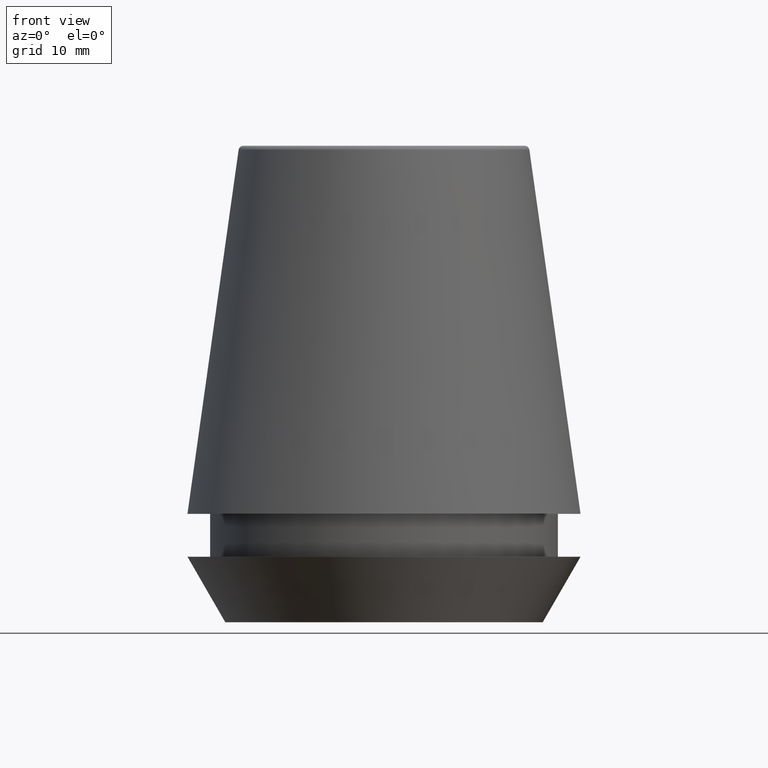
[diagram: clean part render]
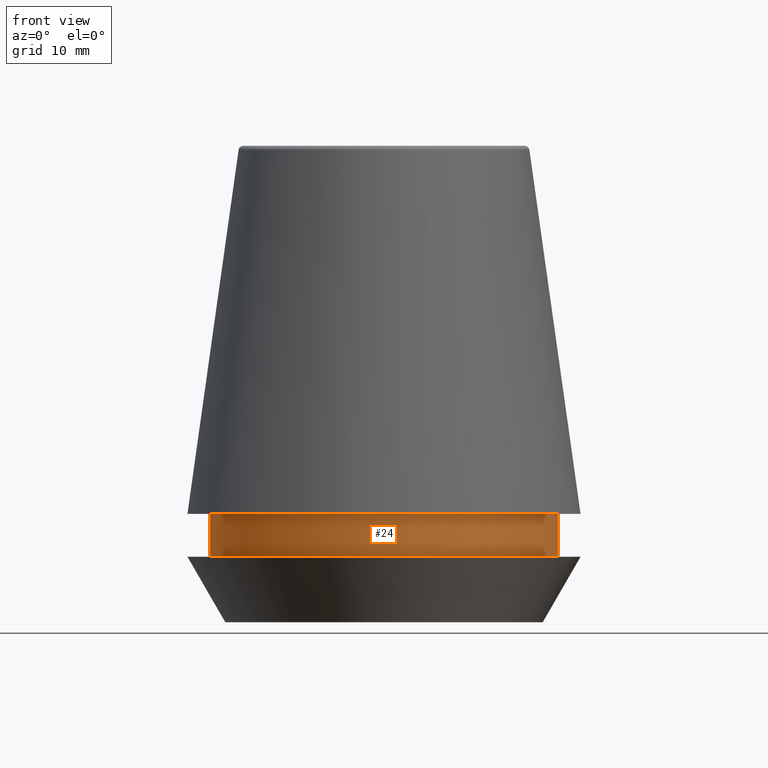
[diagram: same view with one face highlighted and labeled with its STEP entity id]
A machine part, front view. The second image highlights one B-rep face of the part: STEP entity #24.
In plain terms, the highlighted cylindrical surface (partial cylindrical patch) has radius 14.6 mm, axis along (-0, -0, 1).
Its self-contained STEP definition (entity closure, byte-faithful):
#5 = DIRECTION ( 'NONE',  ( -0.0000000000000000000, -0.0000000000000000000, 1.000000000000000000 ) ) ;
#6 = CYLINDRICAL_SURFACE ( 'NONE', #242, 14.60000000000000000 ) ;
#7 = VERTEX_POINT ( 'NONE', #141 ) ;
#20 = VECTOR ( 'NONE', #250, 1000.000000000000000 ) ;
#24 = ADVANCED_FACE ( 'NONE', ( #109 ), #6, .T. ) ;
#27 = ORIENTED_EDGE ( 'NONE', *, *, #63, .F. ) ;
#34 = CARTESIAN_POINT ( 'NONE',  ( -14.60000000000000000, 1.787984326755135800E-015, 5.500000000000005300 ) ) ;
#36 = CARTESIAN_POINT ( 'NONE',  ( -14.60000000000000000, 1.787984326755135800E-015, 9.099999999999997900 ) ) ;
#39 = DIRECTION ( 'NONE',  ( -0.0000000000000000000, -0.0000000000000000000, 1.000000000000000000 ) ) ;
#43 = CARTESIAN_POINT ( 'NONE',  ( 0.0000000000000000000, 0.0000000000000000000, 9.099999999999997900 ) ) ;
#49 = EDGE_LOOP ( 'NONE', ( #198, #377, #381, #27 ) ) ;
#59 = VERTEX_POINT ( 'NONE', #342 ) ;
#60 = EDGE_CURVE ( 'NONE', #7, #59, #263, .T. ) ;
#63 = EDGE_CURVE ( 'NONE', #363, #59, #94, .T. ) ;
#70 = EDGE_CURVE ( 'NONE', #108, #7, #293, .T. ) ;
#81 = DIRECTION ( 'NONE',  ( 1.000000000000000000, 0.0000000000000000000, 0.0000000000000000000 ) ) ;
#90 = EDGE_CURVE ( 'NONE', #108, #363, #117, .T. ) ;
#94 = CIRCLE ( 'NONE', #216, 14.60000000000000000 ) ;
#103 = VECTOR ( 'NONE', #5, 1000.000000000000000 ) ;
#108 = VERTEX_POINT ( 'NONE', #34 ) ;
#109 = FACE_OUTER_BOUND ( 'NONE', #49, .T. ) ;
#117 = LINE ( 'NONE', #219, #20 ) ;
#131 = CARTESIAN_POINT ( 'NONE',  ( 14.60000000000000000, 0.0000000000000000000, 101.8074564848000400 ) ) ;
#141 = CARTESIAN_POINT ( 'NONE',  ( 14.60000000000000000, 0.0000000000000000000, 5.500000000000005300 ) ) ;
#162 = DIRECTION ( 'NONE',  ( -0.0000000000000000000, -0.0000000000000000000, 1.000000000000000000 ) ) ;
#191 = CARTESIAN_POINT ( 'NONE',  ( 0.0000000000000000000, 0.0000000000000000000, 101.8074564848000400 ) ) ;
#198 = ORIENTED_EDGE ( 'NONE', *, *, #90, .F. ) ;
#199 = AXIS2_PLACEMENT_3D ( 'NONE', #268, #39, #275 ) ;
#216 = AXIS2_PLACEMENT_3D ( 'NONE', #43, #312, #276 ) ;
#219 = CARTESIAN_POINT ( 'NONE',  ( -14.60000000000000000, 1.787984326755135800E-015, 101.8074564848000400 ) ) ;
#242 = AXIS2_PLACEMENT_3D ( 'NONE', #191, #162, #81 ) ;
#250 = DIRECTION ( 'NONE',  ( -0.0000000000000000000, -0.0000000000000000000, 1.000000000000000000 ) ) ;
#263 = LINE ( 'NONE', #131, #103 ) ;
#268 = CARTESIAN_POINT ( 'NONE',  ( 0.0000000000000000000, 0.0000000000000000000, 5.500000000000005300 ) ) ;
#275 = DIRECTION ( 'NONE',  ( 1.000000000000000000, 0.0000000000000000000, 0.0000000000000000000 ) ) ;
#276 = DIRECTION ( 'NONE',  ( 1.000000000000000000, 0.0000000000000000000, 0.0000000000000000000 ) ) ;
#293 = CIRCLE ( 'NONE', #199, 14.60000000000000000 ) ;
#312 = DIRECTION ( 'NONE',  ( -0.0000000000000000000, -0.0000000000000000000, 1.000000000000000000 ) ) ;
#342 = CARTESIAN_POINT ( 'NONE',  ( 14.60000000000000000, 0.0000000000000000000, 9.099999999999997900 ) ) ;
#363 = VERTEX_POINT ( 'NONE', #36 ) ;
#377 = ORIENTED_EDGE ( 'NONE', *, *, #70, .T. ) ;
#381 = ORIENTED_EDGE ( 'NONE', *, *, #60, .T. ) ;